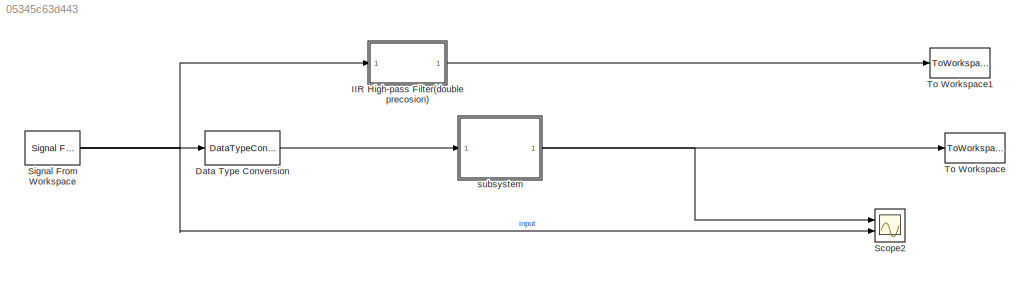
MODEL slx_05345c63d443
KIND model
CONFIG AbsTol = auto
CONFIG EnableMultiTasking = off
CONFIG FixedStep = auto
CONFIG MaxStep = auto
CONFIG MinStep = auto
CONFIG RelTol = 1e-3
CONFIG SampleTimeConstraint = Unconstrained
CONFIG Solver = VariableStepAuto
CONFIG SolverName = VariableStepAuto
CONFIG StartTime = 0.0
CONFIG StopTime = 10.0
BLOCK [DataTypeConversion] Data Type Conversion
  OutDataTypeStr = fixdt(1,16,11)
  RndMeth = Convergent
  SaturateOnIntegerOverflow = off
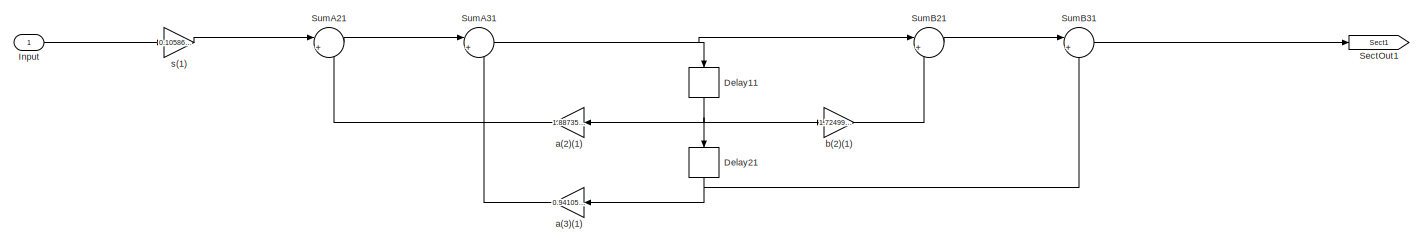
[diagram: IIR High-pass Filter(double precosion) - part 1/3, left side, full height]
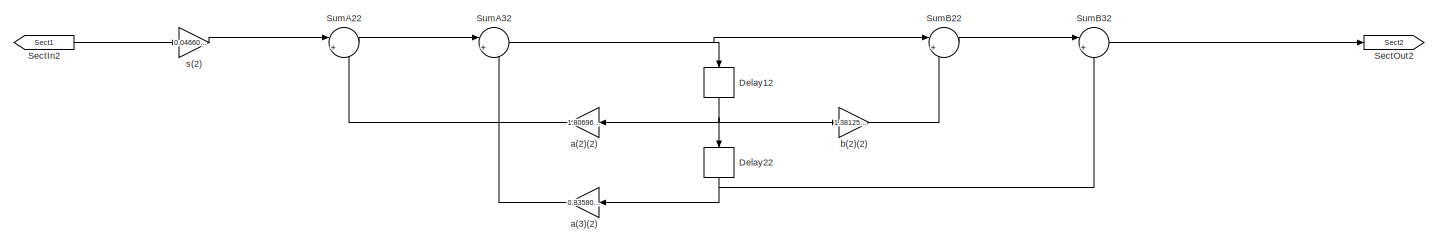
[diagram: IIR High-pass Filter(double precosion) - part 2/3, center side, full height]
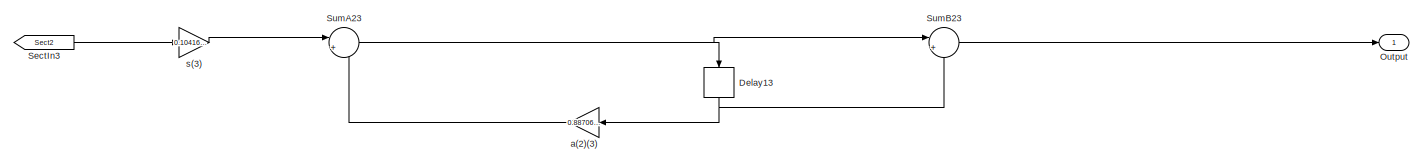
[diagram: IIR High-pass Filter(double precosion) - part 3/3, middle right region]
BLOCK [SubSystem] IIR High-pass Filter(double precosion)
  ErrorFcn = dspFilterRealizedInBasicElemsAlgLoopErrFcnCallback
  Ports = [1, 1]
  RequestExecContextInheritance = off
  Tag = FilterWizardSubSystem
  UserDataPersistent = on
BLOCK [Delay] IIR High-pass Filter(double precosion)/Delay11
  DelayLength = 1
  InitialCondition = 0
  InputPortMap = u0
  NameLocation = right
  Ports = [1, 1]
BLOCK [Delay] IIR High-pass Filter(double precosion)/Delay12
  DelayLength = 1
  InitialCondition = 0
  InputPortMap = u0
  NameLocation = right
  Ports = [1, 1]
BLOCK [Delay] IIR High-pass Filter(double precosion)/Delay13
  DelayLength = 1
  InitialCondition = 0
  InputPortMap = u0
  NameLocation = right
  Ports = [1, 1]
BLOCK [Delay] IIR High-pass Filter(double precosion)/Delay21
  DelayLength = 1
  InitialCondition = 0
  InputPortMap = u0
  NameLocation = right
  Ports = [1, 1]
BLOCK [Delay] IIR High-pass Filter(double precosion)/Delay22
  DelayLength = 1
  InitialCondition = 0
  InputPortMap = u0
  NameLocation = right
  Ports = [1, 1]
BLOCK [Inport] IIR High-pass Filter(double precosion)/Input
BLOCK [Outport] IIR High-pass Filter(double precosion)/Output
BLOCK [From] IIR High-pass Filter(double precosion)/SectIn2
  GotoTag = Sect1
BLOCK [From] IIR High-pass Filter(double precosion)/SectIn3
  GotoTag = Sect2
BLOCK [Goto] IIR High-pass Filter(double precosion)/SectOut1
  GotoTag = Sect1
BLOCK [Goto] IIR High-pass Filter(double precosion)/SectOut2
  GotoTag = Sect2
BLOCK [Sum] IIR High-pass Filter(double precosion)/SumA21
  Inputs = |+-
  OutDataTypeStr = Inherit: Same as first input
  Ports = [2, 1]
  RndMeth = Nearest
  SaturateOnIntegerOverflow = on
BLOCK [Sum] IIR High-pass Filter(double precosion)/SumA22
  Inputs = |+-
  OutDataTypeStr = Inherit: Same as first input
  Ports = [2, 1]
  RndMeth = Nearest
  SaturateOnIntegerOverflow = on
BLOCK [Sum] IIR High-pass Filter(double precosion)/SumA23
  Inputs = |+-
  OutDataTypeStr = Inherit: Same as first input
  Ports = [2, 1]
  RndMeth = Nearest
  SaturateOnIntegerOverflow = on
BLOCK [Sum] IIR High-pass Filter(double precosion)/SumA31
  Inputs = |+-
  OutDataTypeStr = Inherit: Same as first input
  Ports = [2, 1]
  RndMeth = Nearest
  SaturateOnIntegerOverflow = on
BLOCK [Sum] IIR High-pass Filter(double precosion)/SumA32
  Inputs = |+-
  OutDataTypeStr = Inherit: Same as first input
  Ports = [2, 1]
  RndMeth = Nearest
  SaturateOnIntegerOverflow = on
BLOCK [Sum] IIR High-pass Filter(double precosion)/SumB21
  Inputs = |++
  OutDataTypeStr = Inherit: Same as first input
  Ports = [2, 1]
  RndMeth = Nearest
  SaturateOnIntegerOverflow = on
BLOCK [Sum] IIR High-pass Filter(double precosion)/SumB22
  Inputs = |++
  OutDataTypeStr = Inherit: Same as first input
  Ports = [2, 1]
  RndMeth = Nearest
  SaturateOnIntegerOverflow = on
BLOCK [Sum] IIR High-pass Filter(double precosion)/SumB23
  Inputs = |+-
  OutDataTypeStr = Inherit: Same as first input
  Ports = [2, 1]
  RndMeth = Nearest
  SaturateOnIntegerOverflow = on
BLOCK [Sum] IIR High-pass Filter(double precosion)/SumB31
  Inputs = |++
  OutDataTypeStr = Inherit: Same as first input
  Ports = [2, 1]
  RndMeth = Nearest
  SaturateOnIntegerOverflow = on
BLOCK [Sum] IIR High-pass Filter(double precosion)/SumB32
  Inputs = |++
  OutDataTypeStr = Inherit: Same as first input
  Ports = [2, 1]
  RndMeth = Nearest
  SaturateOnIntegerOverflow = on
BLOCK [Gain] IIR High-pass Filter(double precosion)/a(2)(1)
  Gain = 1.88735454374827949
  OutDataTypeStr = Inherit: Same as input
  ParamDataTypeStr = double
  RndMeth = Nearest
  SaturateOnIntegerOverflow = on
BLOCK [Gain] IIR High-pass Filter(double precosion)/a(2)(2)
  Gain = 1.80696791990688821
  OutDataTypeStr = Inherit: Same as input
  ParamDataTypeStr = double
  RndMeth = Nearest
  SaturateOnIntegerOverflow = on
BLOCK [Gain] IIR High-pass Filter(double precosion)/a(2)(3)
  Gain = 0.887060645613220511
  OutDataTypeStr = Inherit: Same as input
  ParamDataTypeStr = double
  RndMeth = Nearest
  SaturateOnIntegerOverflow = on
BLOCK [Gain] IIR High-pass Filter(double precosion)/a(3)(1)
  Gain = 0.941058301252869045
  OutDataTypeStr = Inherit: Same as input
  ParamDataTypeStr = double
  RndMeth = Nearest
  SaturateOnIntegerOverflow = on
BLOCK [Gain] IIR High-pass Filter(double precosion)/a(3)(2)
  Gain = 0.835803624763594266
  OutDataTypeStr = Inherit: Same as input
  ParamDataTypeStr = double
  RndMeth = Nearest
  SaturateOnIntegerOverflow = on
BLOCK [Gain] IIR High-pass Filter(double precosion)/b(2)(1)
  Gain = 1.72499296375073352
  OutDataTypeStr = Inherit: Same as input
  ParamDataTypeStr = double
  RndMeth = Nearest
  SaturateOnIntegerOverflow = on
BLOCK [Gain] IIR High-pass Filter(double precosion)/b(2)(2)
  Gain = 1.38125597793355337
  OutDataTypeStr = Inherit: Same as input
  ParamDataTypeStr = double
  RndMeth = Nearest
  SaturateOnIntegerOverflow = on
BLOCK [Gain] IIR High-pass Filter(double precosion)/s(1)
  Gain = 0.105863730533801867
  OutDataTypeStr = Inherit: Same as input
  ParamDataTypeStr = double
  RndMeth = Nearest
  SaturateOnIntegerOverflow = on
BLOCK [Gain] IIR High-pass Filter(double precosion)/s(2)
  Gain = 0.0466036096161416211
  OutDataTypeStr = Inherit: Same as input
  ParamDataTypeStr = double
  RndMeth = Nearest
  SaturateOnIntegerOverflow = on
BLOCK [Gain] IIR High-pass Filter(double precosion)/s(3)
  Gain = 0.1041667174132411
  OutDataTypeStr = Inherit: Same as input
  ParamDataTypeStr = double
  RndMeth = Nearest
  SaturateOnIntegerOverflow = on
BLOCK [Scope] Scope2
  Floating = off
  NumInputPorts = 2
  Ports = [2]
  ScopeSpecificationString = Simulink.scopes.TimeScopeBlockCfg('CurrentConfiguration', extmgr.ConfigurationSet(extmgr.Configuration('Core','General UI',true),extmgr.Configuration('Core','Source UI',true),extmgr.Configuration('Sources','WiredSimulink',true,'DataLoggingVariableName','ScopeData1'),extmgr.Configuration('Visuals','Time Domain',true,'SerializedDisplays',{struct('MinYLimReal','-0.01553','MaxYLimReal','0.01559','YLab...<+1995ch>
BLOCK [Reference] Signal From Workspace  REF=dspsrcs4/Signal From
Workspace
  Ports = [0, 1]
  SourceBlock = dspsrcs4/Signal From\nWorkspace
  SourceProductBaseCode = DS
  SourceType = Signal From Workspace
BLOCK [ToWorkspace] To Workspace
  MaxDataPoints = inf
  Ports = [1]
  SampleTime = -1
  SaveFormat = Timeseries
  VariableName = yd
BLOCK [ToWorkspace] To Workspace1
  MaxDataPoints = inf
  Ports = [1]
  SampleTime = -1
  SaveFormat = Timeseries
  VariableName = yd1
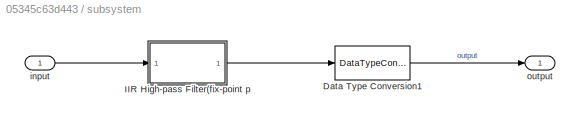
BLOCK [SubSystem] subsystem
  Ports = [1, 1]
  RequestExecContextInheritance = off
BLOCK [DataTypeConversion] subsystem/Data Type Conversion1
  OutDataTypeStr = fixdt(1,16,24)
  RndMeth = Floor
  SaturateOnIntegerOverflow = off
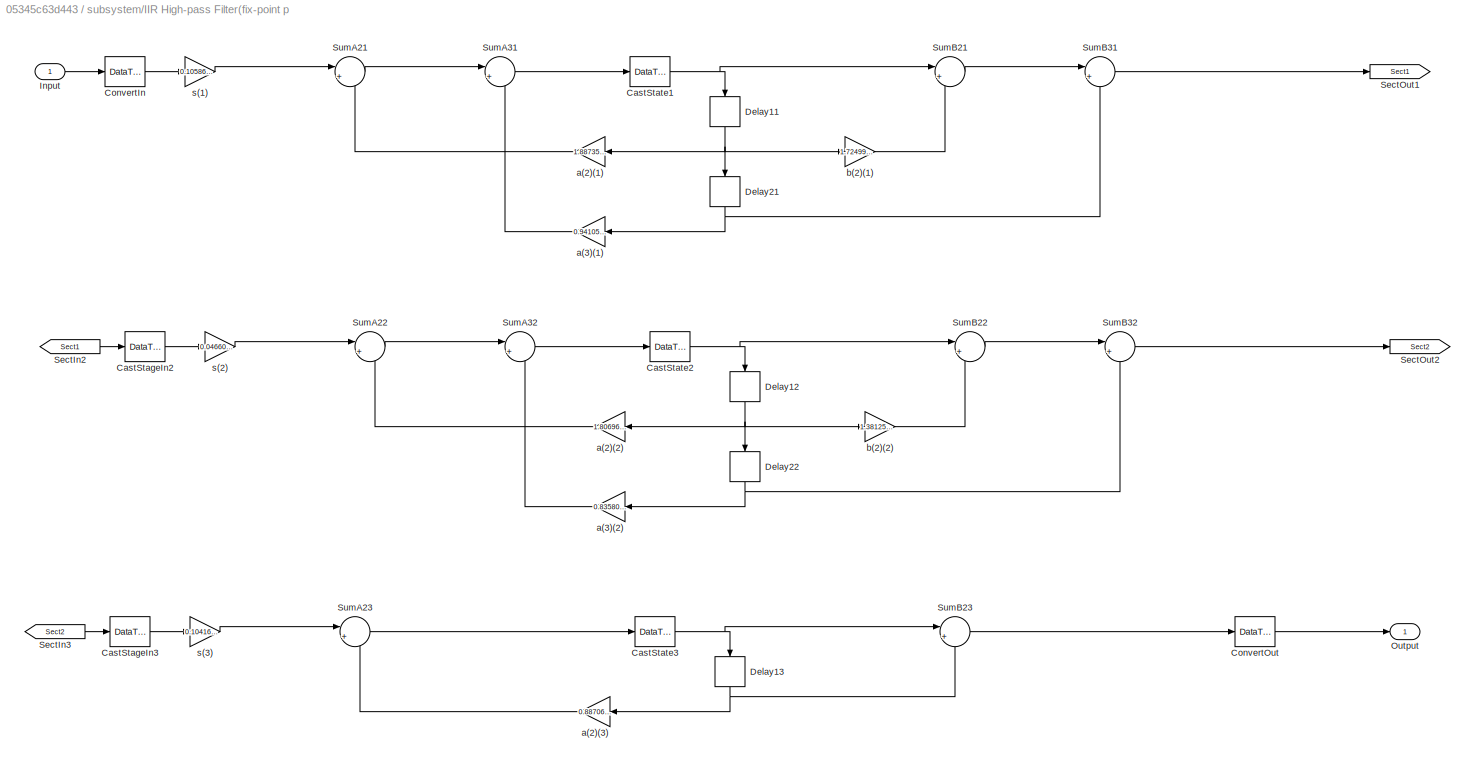
BLOCK [SubSystem] subsystem/IIR High-pass Filter(fix-point p
  ErrorFcn = dspFilterRealizedInBasicElemsAlgLoopErrFcnCallback
  Ports = [1, 1]
  RequestExecContextInheritance = off
  Tag = FilterWizardSubSystem
  UserDataPersistent = on
BLOCK [DataTypeConversion] subsystem/IIR High-pass Filter(fix-point p/CastStageIn2
  OutDataTypeStr = fixdt(1,64,35)
  RndMeth = Convergent
  SaturateOnIntegerOverflow = off
BLOCK [DataTypeConversion] subsystem/IIR High-pass Filter(fix-point p/CastStageIn3
  OutDataTypeStr = fixdt(1,64,40)
  RndMeth = Convergent
  SaturateOnIntegerOverflow = off
BLOCK [DataTypeConversion] subsystem/IIR High-pass Filter(fix-point p/CastState1
  OutDataTypeStr = fixdt(1,64,37)
  RndMeth = Convergent
  SaturateOnIntegerOverflow = off
BLOCK [DataTypeConversion] subsystem/IIR High-pass Filter(fix-point p/CastState2
  OutDataTypeStr = fixdt(1,64,41)
  RndMeth = Convergent
  SaturateOnIntegerOverflow = off
BLOCK [DataTypeConversion] subsystem/IIR High-pass Filter(fix-point p/CastState3
  OutDataTypeStr = fixdt(1,64,40)
  RndMeth = Convergent
  SaturateOnIntegerOverflow = off
BLOCK [DataTypeConversion] subsystem/IIR High-pass Filter(fix-point p/ConvertIn
  OutDataTypeStr = fixdt(1,64,52)
  RndMeth = Nearest
BLOCK [DataTypeConversion] subsystem/IIR High-pass Filter(fix-point p/ConvertOut
  OutDataTypeStr = fixdt(1,64,39)
  RndMeth = Convergent
  SaturateOnIntegerOverflow = off
BLOCK [Delay] subsystem/IIR High-pass Filter(fix-point p/Delay11
  DelayLength = 1
  InitialCondition = 0
  InputPortMap = u0
  NameLocation = right
  Ports = [1, 1]
BLOCK [Delay] subsystem/IIR High-pass Filter(fix-point p/Delay12
  DelayLength = 1
  InitialCondition = 0
  InputPortMap = u0
  NameLocation = right
  Ports = [1, 1]
BLOCK [Delay] subsystem/IIR High-pass Filter(fix-point p/Delay13
  DelayLength = 1
  InitialCondition = 0
  InputPortMap = u0
  NameLocation = right
  Ports = [1, 1]
BLOCK [Delay] subsystem/IIR High-pass Filter(fix-point p/Delay21
  DelayLength = 1
  InitialCondition = 0
  InputPortMap = u0
  NameLocation = right
  Ports = [1, 1]
BLOCK [Delay] subsystem/IIR High-pass Filter(fix-point p/Delay22
  DelayLength = 1
  InitialCondition = 0
  InputPortMap = u0
  NameLocation = right
  Ports = [1, 1]
BLOCK [Inport] subsystem/IIR High-pass Filter(fix-point p/Input
  LockScale = on
  OutDataTypeStr = fixdt(1,16,11)
BLOCK [Outport] subsystem/IIR High-pass Filter(fix-point p/Output
BLOCK [From] subsystem/IIR High-pass Filter(fix-point p/SectIn2
  GotoTag = Sect1
BLOCK [From] subsystem/IIR High-pass Filter(fix-point p/SectIn3
  GotoTag = Sect2
BLOCK [Goto] subsystem/IIR High-pass Filter(fix-point p/SectOut1
  GotoTag = Sect1
BLOCK [Goto] subsystem/IIR High-pass Filter(fix-point p/SectOut2
  GotoTag = Sect2
BLOCK [Sum] subsystem/IIR High-pass Filter(fix-point p/SumA21
  AccumDataTypeStr = fixdt(1,64,53)
  Inputs = |+-
  OutDataTypeStr = fixdt(1,64,33)
  Ports = [2, 1]
  RndMeth = Convergent
BLOCK [Sum] subsystem/IIR High-pass Filter(fix-point p/SumA22
  AccumDataTypeStr = fixdt(1,64,39)
  Inputs = |+-
  OutDataTypeStr = fixdt(1,64,37)
  Ports = [2, 1]
  RndMeth = Convergent
BLOCK [Sum] subsystem/IIR High-pass Filter(fix-point p/SumA23
  AccumDataTypeStr = fixdt(1,64,39)
  Inputs = |+-
  OutDataTypeStr = fixdt(1,64,39)
  Ports = [2, 1]
  RndMeth = Convergent
BLOCK [Sum] subsystem/IIR High-pass Filter(fix-point p/SumA31
  AccumDataTypeStr = fixdt(1,64,33)
  Inputs = |+-
  OutDataTypeStr = fixdt(1,64,34)
  Ports = [2, 1]
  RndMeth = Convergent
BLOCK [Sum] subsystem/IIR High-pass Filter(fix-point p/SumA32
  AccumDataTypeStr = fixdt(1,64,37)
  Inputs = |+-
  OutDataTypeStr = fixdt(1,64,38)
  Ports = [2, 1]
  RndMeth = Convergent
BLOCK [Sum] subsystem/IIR High-pass Filter(fix-point p/SumB21
  AccumDataTypeStr = fixdt(1,64,33)
  Inputs = |++
  OutDataTypeStr = fixdt(1,64,33)
  Ports = [2, 1]
  RndMeth = Convergent
BLOCK [Sum] subsystem/IIR High-pass Filter(fix-point p/SumB22
  AccumDataTypeStr = fixdt(1,64,38)
  Inputs = |++
  OutDataTypeStr = fixdt(1,64,38)
  Ports = [2, 1]
  RndMeth = Convergent
BLOCK [Sum] subsystem/IIR High-pass Filter(fix-point p/SumB23
  AccumDataTypeStr = fixdt(1,64,39)
  Inputs = |+-
  OutDataTypeStr = fixdt(1,64,39)
  Ports = [2, 1]
  RndMeth = Convergent
BLOCK [Sum] subsystem/IIR High-pass Filter(fix-point p/SumB31
  AccumDataTypeStr = fixdt(1,64,35)
  Inputs = |++
  OutDataTypeStr = fixdt(1,64,34)
  Ports = [2, 1]
  RndMeth = Convergent
BLOCK [Sum] subsystem/IIR High-pass Filter(fix-point p/SumB32
  AccumDataTypeStr = fixdt(1,64,38)
  Inputs = |++
  OutDataTypeStr = fixdt(1,64,37)
  Ports = [2, 1]
  RndMeth = Convergent
BLOCK [Gain] subsystem/IIR High-pass Filter(fix-point p/a(2)(1)
  Gain = 1.88735454374827949
  OutDataTypeStr = fixdt(1,64,32)
  ParamDataTypeStr = fixdt(0,16,15)
  RndMeth = Convergent
BLOCK [Gain] subsystem/IIR High-pass Filter(fix-point p/a(2)(2)
  Gain = 1.80696791990688821
  OutDataTypeStr = fixdt(1,32,35)
  ParamDataTypeStr = fixdt(0,16,15)
  RndMeth = Convergent
BLOCK [Gain] subsystem/IIR High-pass Filter(fix-point p/a(2)(3)
  Gain = 0.887060645613220511
  OutDataTypeStr = fixdt(1,32,38)
  ParamDataTypeStr = fixdt(0,16,16)
  RndMeth = Convergent
BLOCK [Gain] subsystem/IIR High-pass Filter(fix-point p/a(3)(1)
  Gain = 0.941058301252869045
  OutDataTypeStr = fixdt(1,64,34)
  ParamDataTypeStr = fixdt(0,16,16)
  RndMeth = Convergent
BLOCK [Gain] subsystem/IIR High-pass Filter(fix-point p/a(3)(2)
  Gain = 0.835803624763594266
  OutDataTypeStr = fixdt(1,32,36)
  ParamDataTypeStr = fixdt(0,16,16)
  RndMeth = Convergent
BLOCK [Gain] subsystem/IIR High-pass Filter(fix-point p/b(2)(1)
  Gain = 1.72499296375073352
  OutDataTypeStr = fixdt(1,64,34)
  ParamDataTypeStr = fixdt(0,16,15)
  RndMeth = Convergent
BLOCK [Gain] subsystem/IIR High-pass Filter(fix-point p/b(2)(2)
  Gain = 1.38125597793355337
  OutDataTypeStr = fixdt(1,32,35)
  ParamDataTypeStr = fixdt(0,16,15)
  RndMeth = Convergent
BLOCK [Gain] subsystem/IIR High-pass Filter(fix-point p/s(1)
  Gain = 0.105863730533801867
  OutDataTypeStr = fixdt(1,64,54)
  ParamDataTypeStr = fixdt(0,16,19)
  RndMeth = Convergent
BLOCK [Gain] subsystem/IIR High-pass Filter(fix-point p/s(2)
  Gain = 0.0466036096161416211
  OutDataTypeStr = fixdt(1,64,41)
  ParamDataTypeStr = fixdt(0,16,20)
  RndMeth = Convergent
BLOCK [Gain] subsystem/IIR High-pass Filter(fix-point p/s(3)
  Gain = 0.1041667174132411
  OutDataTypeStr = fixdt(1,64,42)
  ParamDataTypeStr = fixdt(0,16,19)
  RndMeth = Convergent
BLOCK [Inport] subsystem/input
BLOCK [Outport] subsystem/output
LINE Data Type Conversion:1 -> subsystem:1
NET IIR High-pass Filter(double precosion)/Delay11:1 -> IIR High-pass Filter(double precosion)/Delay21:1, IIR High-pass Filter(double precosion)/a(2)(1):1, IIR High-pass Filter(double precosion)/b(2)(1):1
NET IIR High-pass Filter(double precosion)/Delay12:1 -> IIR High-pass Filter(double precosion)/Delay22:1, IIR High-pass Filter(double precosion)/a(2)(2):1, IIR High-pass Filter(double precosion)/b(2)(2):1
NET IIR High-pass Filter(double precosion)/Delay13:1 -> IIR High-pass Filter(double precosion)/SumB23:2, IIR High-pass Filter(double precosion)/a(2)(3):1
NET IIR High-pass Filter(double precosion)/Delay21:1 -> IIR High-pass Filter(double precosion)/SumB31:2, IIR High-pass Filter(double precosion)/a(3)(1):1
NET IIR High-pass Filter(double precosion)/Delay22:1 -> IIR High-pass Filter(double precosion)/SumB32:2, IIR High-pass Filter(double precosion)/a(3)(2):1
LINE IIR High-pass Filter(double precosion)/Input:1 -> IIR High-pass Filter(double precosion)/s(1):1
LINE IIR High-pass Filter(double precosion)/SectIn2:1 -> IIR High-pass Filter(double precosion)/s(2):1
LINE IIR High-pass Filter(double precosion)/SectIn3:1 -> IIR High-pass Filter(double precosion)/s(3):1
LINE IIR High-pass Filter(double precosion)/SumA21:1 -> IIR High-pass Filter(double precosion)/SumA31:1
LINE IIR High-pass Filter(double precosion)/SumA22:1 -> IIR High-pass Filter(double precosion)/SumA32:1
NET IIR High-pass Filter(double precosion)/SumA23:1 -> IIR High-pass Filter(double precosion)/Delay13:1, IIR High-pass Filter(double precosion)/SumB23:1
NET IIR High-pass Filter(double precosion)/SumA31:1 -> IIR High-pass Filter(double precosion)/Delay11:1, IIR High-pass Filter(double precosion)/SumB21:1
NET IIR High-pass Filter(double precosion)/SumA32:1 -> IIR High-pass Filter(double precosion)/Delay12:1, IIR High-pass Filter(double precosion)/SumB22:1
LINE IIR High-pass Filter(double precosion)/SumB21:1 -> IIR High-pass Filter(double precosion)/SumB31:1
LINE IIR High-pass Filter(double precosion)/SumB22:1 -> IIR High-pass Filter(double precosion)/SumB32:1
LINE IIR High-pass Filter(double precosion)/SumB23:1 -> IIR High-pass Filter(double precosion)/Output:1
LINE IIR High-pass Filter(double precosion)/SumB31:1 -> IIR High-pass Filter(double precosion)/SectOut1:1
LINE IIR High-pass Filter(double precosion)/SumB32:1 -> IIR High-pass Filter(double precosion)/SectOut2:1
LINE IIR High-pass Filter(double precosion)/a(2)(1):1 -> IIR High-pass Filter(double precosion)/SumA21:2
LINE IIR High-pass Filter(double precosion)/a(2)(2):1 -> IIR High-pass Filter(double precosion)/SumA22:2
LINE IIR High-pass Filter(double precosion)/a(2)(3):1 -> IIR High-pass Filter(double precosion)/SumA23:2
LINE IIR High-pass Filter(double precosion)/a(3)(1):1 -> IIR High-pass Filter(double precosion)/SumA31:2
LINE IIR High-pass Filter(double precosion)/a(3)(2):1 -> IIR High-pass Filter(double precosion)/SumA32:2
LINE IIR High-pass Filter(double precosion)/b(2)(1):1 -> IIR High-pass Filter(double precosion)/SumB21:2
LINE IIR High-pass Filter(double precosion)/b(2)(2):1 -> IIR High-pass Filter(double precosion)/SumB22:2
LINE IIR High-pass Filter(double precosion)/s(1):1 -> IIR High-pass Filter(double precosion)/SumA21:1
LINE IIR High-pass Filter(double precosion)/s(2):1 -> IIR High-pass Filter(double precosion)/SumA22:1
LINE IIR High-pass Filter(double precosion)/s(3):1 -> IIR High-pass Filter(double precosion)/SumA23:1
LINE IIR High-pass Filter(double precosion):1 -> To Workspace1:1
NET Signal From Workspace:1 -> Data Type Conversion:1, IIR High-pass Filter(double precosion):1, Scope2:2
LINE subsystem/Data Type Conversion1:1 -> subsystem/output:1
LINE subsystem/IIR High-pass Filter(fix-point p/CastStageIn2:1 -> subsystem/IIR High-pass Filter(fix-point p/s(2):1
LINE subsystem/IIR High-pass Filter(fix-point p/CastStageIn3:1 -> subsystem/IIR High-pass Filter(fix-point p/s(3):1
NET subsystem/IIR High-pass Filter(fix-point p/CastState1:1 -> subsystem/IIR High-pass Filter(fix-point p/Delay11:1, subsystem/IIR High-pass Filter(fix-point p/SumB21:1
NET subsystem/IIR High-pass Filter(fix-point p/CastState2:1 -> subsystem/IIR High-pass Filter(fix-point p/Delay12:1, subsystem/IIR High-pass Filter(fix-point p/SumB22:1
NET subsystem/IIR High-pass Filter(fix-point p/CastState3:1 -> subsystem/IIR High-pass Filter(fix-point p/Delay13:1, subsystem/IIR High-pass Filter(fix-point p/SumB23:1
LINE subsystem/IIR High-pass Filter(fix-point p/ConvertIn:1 -> subsystem/IIR High-pass Filter(fix-point p/s(1):1
LINE subsystem/IIR High-pass Filter(fix-point p/ConvertOut:1 -> subsystem/IIR High-pass Filter(fix-point p/Output:1
NET subsystem/IIR High-pass Filter(fix-point p/Delay11:1 -> subsystem/IIR High-pass Filter(fix-point p/Delay21:1, subsystem/IIR High-pass Filter(fix-point p/a(2)(1):1, subsystem/IIR High-pass Filter(fix-point p/b(2)(1):1
NET subsystem/IIR High-pass Filter(fix-point p/Delay12:1 -> subsystem/IIR High-pass Filter(fix-point p/Delay22:1, subsystem/IIR High-pass Filter(fix-point p/a(2)(2):1, subsystem/IIR High-pass Filter(fix-point p/b(2)(2):1
NET subsystem/IIR High-pass Filter(fix-point p/Delay13:1 -> subsystem/IIR High-pass Filter(fix-point p/SumB23:2, subsystem/IIR High-pass Filter(fix-point p/a(2)(3):1
NET subsystem/IIR High-pass Filter(fix-point p/Delay21:1 -> subsystem/IIR High-pass Filter(fix-point p/SumB31:2, subsystem/IIR High-pass Filter(fix-point p/a(3)(1):1
NET subsystem/IIR High-pass Filter(fix-point p/Delay22:1 -> subsystem/IIR High-pass Filter(fix-point p/SumB32:2, subsystem/IIR High-pass Filter(fix-point p/a(3)(2):1
LINE subsystem/IIR High-pass Filter(fix-point p/Input:1 -> subsystem/IIR High-pass Filter(fix-point p/ConvertIn:1
LINE subsystem/IIR High-pass Filter(fix-point p/SectIn2:1 -> subsystem/IIR High-pass Filter(fix-point p/CastStageIn2:1
LINE subsystem/IIR High-pass Filter(fix-point p/SectIn3:1 -> subsystem/IIR High-pass Filter(fix-point p/CastStageIn3:1
LINE subsystem/IIR High-pass Filter(fix-point p/SumA21:1 -> subsystem/IIR High-pass Filter(fix-point p/SumA31:1
LINE subsystem/IIR High-pass Filter(fix-point p/SumA22:1 -> subsystem/IIR High-pass Filter(fix-point p/SumA32:1
LINE subsystem/IIR High-pass Filter(fix-point p/SumA23:1 -> subsystem/IIR High-pass Filter(fix-point p/CastState3:1
LINE subsystem/IIR High-pass Filter(fix-point p/SumA31:1 -> subsystem/IIR High-pass Filter(fix-point p/CastState1:1
LINE subsystem/IIR High-pass Filter(fix-point p/SumA32:1 -> subsystem/IIR High-pass Filter(fix-point p/CastState2:1
LINE subsystem/IIR High-pass Filter(fix-point p/SumB21:1 -> subsystem/IIR High-pass Filter(fix-point p/SumB31:1
LINE subsystem/IIR High-pass Filter(fix-point p/SumB22:1 -> subsystem/IIR High-pass Filter(fix-point p/SumB32:1
LINE subsystem/IIR High-pass Filter(fix-point p/SumB23:1 -> subsystem/IIR High-pass Filter(fix-point p/ConvertOut:1
LINE subsystem/IIR High-pass Filter(fix-point p/SumB31:1 -> subsystem/IIR High-pass Filter(fix-point p/SectOut1:1
LINE subsystem/IIR High-pass Filter(fix-point p/SumB32:1 -> subsystem/IIR High-pass Filter(fix-point p/SectOut2:1
LINE subsystem/IIR High-pass Filter(fix-point p/a(2)(1):1 -> subsystem/IIR High-pass Filter(fix-point p/SumA21:2
LINE subsystem/IIR High-pass Filter(fix-point p/a(2)(2):1 -> subsystem/IIR High-pass Filter(fix-point p/SumA22:2
LINE subsystem/IIR High-pass Filter(fix-point p/a(2)(3):1 -> subsystem/IIR High-pass Filter(fix-point p/SumA23:2
LINE subsystem/IIR High-pass Filter(fix-point p/a(3)(1):1 -> subsystem/IIR High-pass Filter(fix-point p/SumA31:2
LINE subsystem/IIR High-pass Filter(fix-point p/a(3)(2):1 -> subsystem/IIR High-pass Filter(fix-point p/SumA32:2
LINE subsystem/IIR High-pass Filter(fix-point p/b(2)(1):1 -> subsystem/IIR High-pass Filter(fix-point p/SumB21:2
LINE subsystem/IIR High-pass Filter(fix-point p/b(2)(2):1 -> subsystem/IIR High-pass Filter(fix-point p/SumB22:2
LINE subsystem/IIR High-pass Filter(fix-point p/s(1):1 -> subsystem/IIR High-pass Filter(fix-point p/SumA21:1
LINE subsystem/IIR High-pass Filter(fix-point p/s(2):1 -> subsystem/IIR High-pass Filter(fix-point p/SumA22:1
LINE subsystem/IIR High-pass Filter(fix-point p/s(3):1 -> subsystem/IIR High-pass Filter(fix-point p/SumA23:1
LINE subsystem/IIR High-pass Filter(fix-point p:1 -> subsystem/Data Type Conversion1:1
LINE subsystem/input:1 -> subsystem/IIR High-pass Filter(fix-point p:1
NET subsystem:1 -> Scope2:1, To Workspace:1
note: NET lines group one-source signal fan-out (src -> all destinations, sorted); 1:1 wires keep LINE
